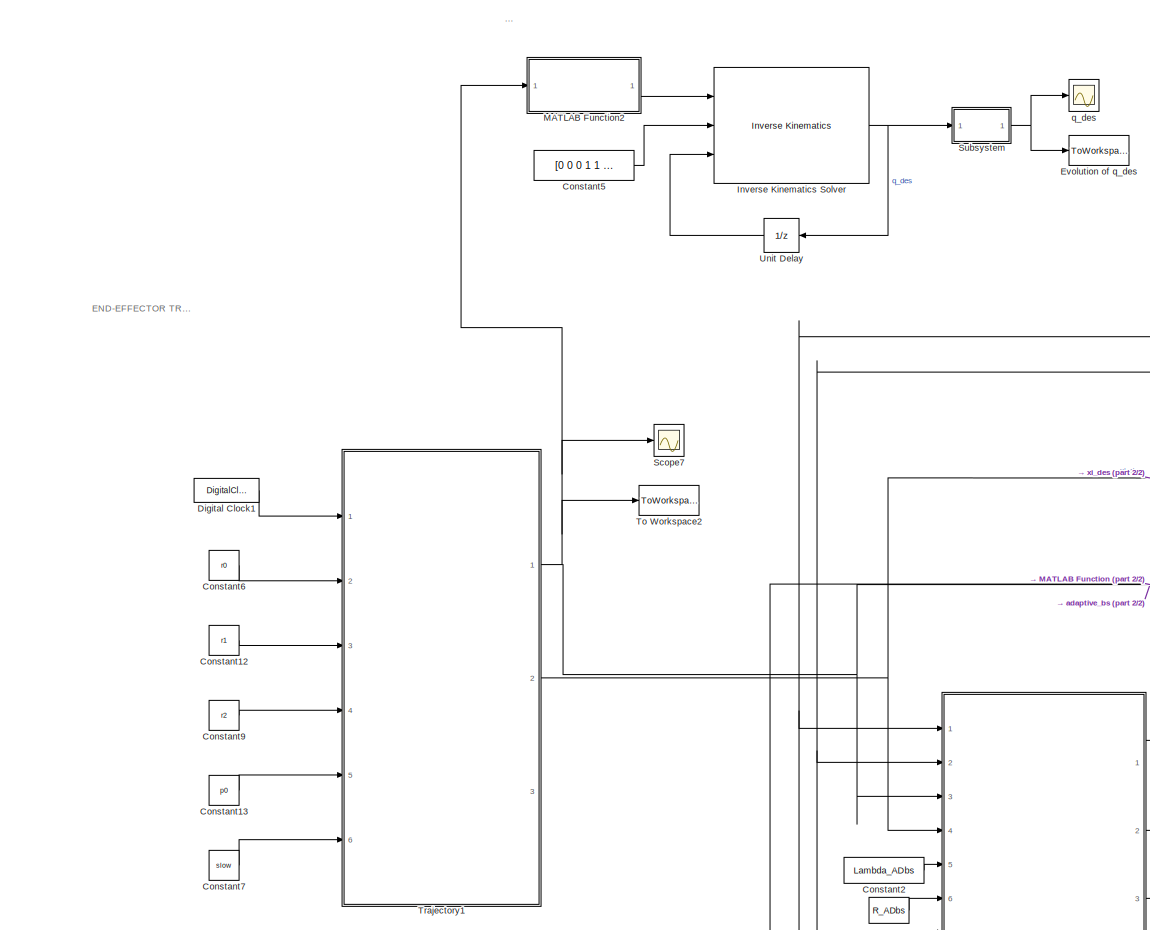
[diagram: root canvas - part 1/2, left side, full height]
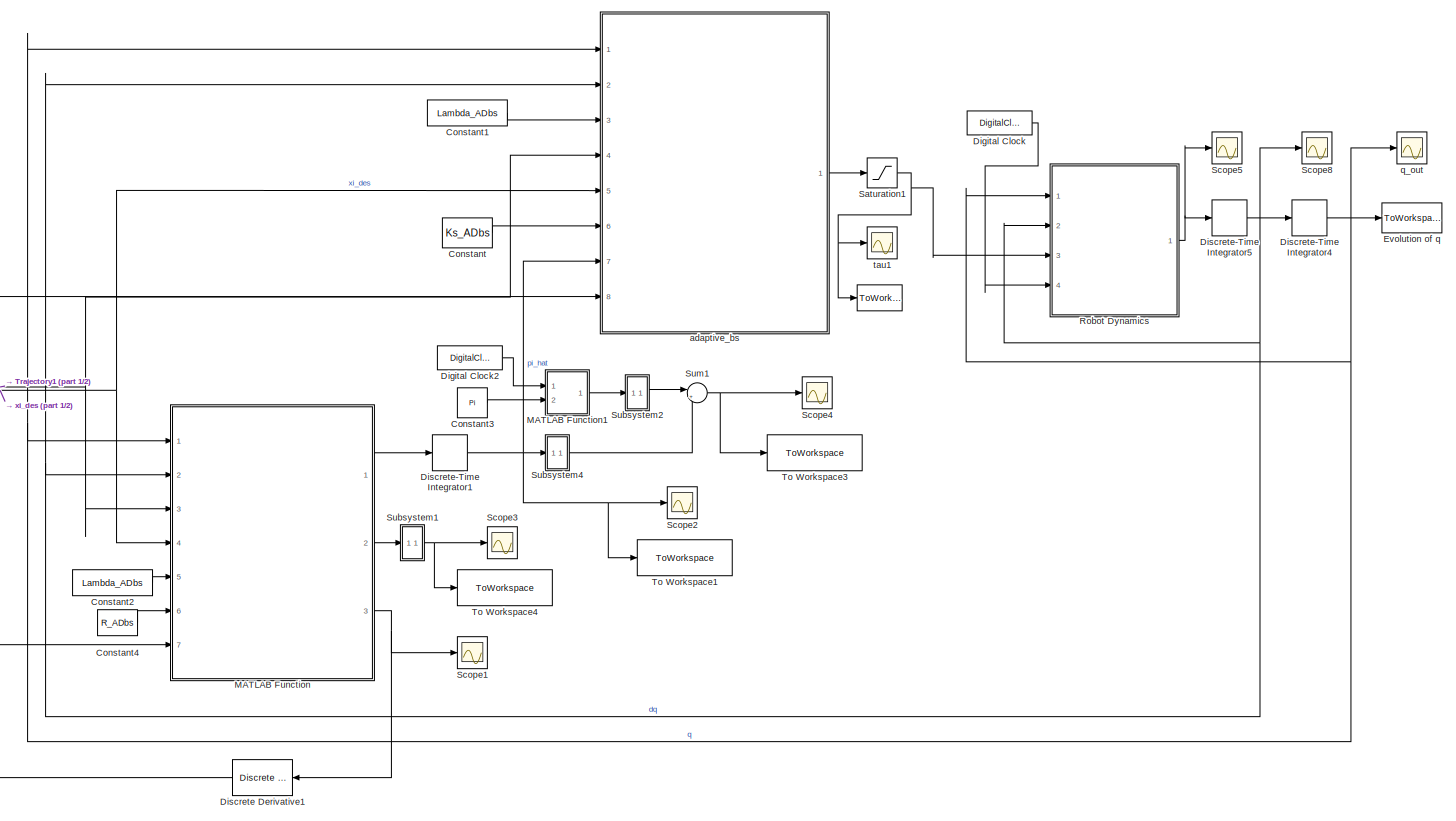
[diagram: root canvas - part 2/2, middle right region]
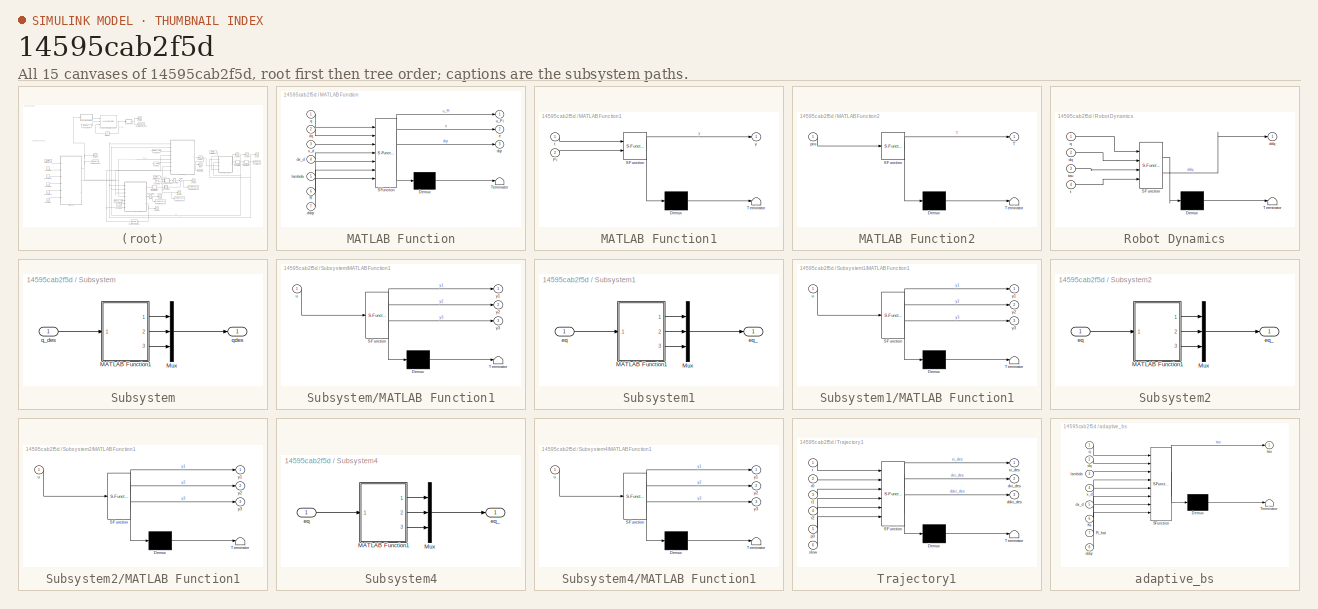
[diagram: thumbnail index - all 15 canvases of the model, root first then tree order]
MODEL slx_14595cab2f5d
KIND model
CONFIG AbsTol = auto
CONFIG EnableMultiTasking = off
CONFIG FixedStep = auto
CONFIG MaxStep = auto
CONFIG MinStep = auto
CONFIG RelTol = 1e-6
CONFIG SampleTimeConstraint = Unconstrained
CONFIG SolverName = VariableStepAuto
CONFIG StartTime = 0.0
CONFIG StopTime = 500
BLOCK [ToWorkspace]          
  FixptAsFi = on
  MaxDataPoints = inf
  Ports = [1]
  SampleTime = -1
  SaveFormat = Timeseries
  VariableName = tau_out
BLOCK [Constant] Constant
  Value = Ks_ADbs
BLOCK [Constant] Constant1
  Value = Lambda_ADbs
BLOCK [Constant] Constant12
  Value = r1
BLOCK [Constant] Constant13
  Value = p0
BLOCK [Constant] Constant2
  Value = Lambda_ADbs
BLOCK [Constant] Constant3
  Value = Pi
BLOCK [Constant] Constant4
  Value = R_ADbs
BLOCK [Constant] Constant5
  Value = [0 0 0 1 1 1]
BLOCK [Constant] Constant6
  Value = r0
BLOCK [Constant] Constant7
  Value = slow
BLOCK [Constant] Constant9
  Value = r2
BLOCK [DigitalClock] Digital Clock
  SampleTime = 0.01
BLOCK [DigitalClock] Digital Clock1
  SampleTime = 0.01
BLOCK [DigitalClock] Digital Clock2
  SampleTime = 0.01
BLOCK [Reference] Discrete Derivative1  REF=simulink/Discrete/Discrete Derivative
  NameLocation = top
  Ports = [1, 1]
  SourceBlock = simulink/Discrete/Discrete Derivative
  SourceProductBaseCode = SL
  SourceType = Discrete Derivative
BLOCK [DiscreteIntegrator] Discrete-Time Integrator1
  ICPrevOutput = DiscIntNeverNeededParam
  ICPrevScaledInput = DiscIntNeverNeededParam
  InitialCondition = Pi_hat0_ADbs
  InitialConditionSetting = Auto
  Ports = [1, 1]
  SampleTime = -1
BLOCK [DiscreteIntegrator] Discrete-Time Integrator4
  ICPrevOutput = DiscIntNeverNeededParam
  ICPrevScaledInput = DiscIntNeverNeededParam
  InitialCondition = q0
  InitialConditionSetting = Auto
  Ports = [1, 1]
  SampleTime = -1
BLOCK [DiscreteIntegrator] Discrete-Time Integrator5
  ICPrevOutput = DiscIntNeverNeededParam
  ICPrevScaledInput = DiscIntNeverNeededParam
  InitialCondition = dq0
  InitialConditionSetting = Auto
  Ports = [1, 1]
  SampleTime = -1
BLOCK [ToWorkspace] Evolution of q
  FixptAsFi = on
  MaxDataPoints = inf
  Ports = [1]
  SampleTime = -1
  SaveFormat = Timeseries
  VariableName = q_out
BLOCK [ToWorkspace] Evolution of q_des
  FixptAsFi = on
  MaxDataPoints = inf
  Ports = [1]
  SampleTime = -1
  SaveFormat = Timeseries
  VariableName = q_des_out
BLOCK [Reference] Inverse Kinematics Solver  REF=robotmaniplib/Inverse Kinematics
  Ports = [3, 1]
  SourceBlock = robotmaniplib/Inverse Kinematics
  SourceProductBaseCode = RO
  SourceType = Inverse Kinematics
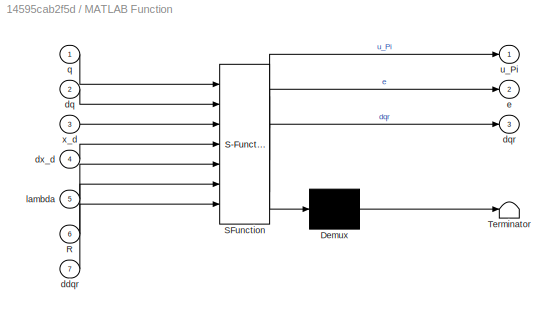
BLOCK [SubSystem] MATLAB Function
  ErrorFcn = Stateflow.Translate.translate
  PermitHierarchicalResolution = ExplicitOnly
  Ports = [7, 3]
  RequestExecContextInheritance = off
  SFBlockType = MATLAB Function
  TreatAsAtomicUnit = on
BLOCK [Demux] MATLAB Function/ Demux 
  Outputs = 1
  Ports = [1, 1]
BLOCK [S-Function] MATLAB Function/ SFunction 
  EnableBusSupport = on
  FunctionName = sf_sfun
  Parameters = param
  PortCounts = [7 4]
  Ports = [7, 4]
  SFcnIsStateOwnerBlock = off
  SFunctionDeploymentMode = off
  Tag = Stateflow S-Function 1
BLOCK [Terminator] MATLAB Function/ Terminator 
BLOCK [Inport] MATLAB Function/R
  Port = 6
BLOCK [Inport] MATLAB Function/ddqr
  Port = 7
BLOCK [Inport] MATLAB Function/dq
  Port = 2
BLOCK [Outport] MATLAB Function/dqr
  Port = 3
BLOCK [Inport] MATLAB Function/dx_d
  Port = 4
BLOCK [Outport] MATLAB Function/e
  Port = 2
BLOCK [Inport] MATLAB Function/lambda
  Port = 5
BLOCK [Inport] MATLAB Function/q
BLOCK [Outport] MATLAB Function/u_Pi
BLOCK [Inport] MATLAB Function/x_d
  Port = 3
BLOCK [SubSystem] MATLAB Function1
  ErrorFcn = Stateflow.Translate.translate
  PermitHierarchicalResolution = ExplicitOnly
  Ports = [2, 1]
  RequestExecContextInheritance = off
  SFBlockType = MATLAB Function
  TreatAsAtomicUnit = on
BLOCK [Demux] MATLAB Function1/ Demux 
  Outputs = 1
  Ports = [1, 1]
BLOCK [S-Function] MATLAB Function1/ SFunction 
  EnableBusSupport = on
  FunctionName = sf_sfun
  PortCounts = [2 2]
  Ports = [2, 2]
  SFcnIsStateOwnerBlock = off
  SFunctionDeploymentMode = off
  Tag = Stateflow S-Function 7
BLOCK [Terminator] MATLAB Function1/ Terminator 
BLOCK [Inport] MATLAB Function1/Pi
  Port = 2
BLOCK [Inport] MATLAB Function1/t
BLOCK [Outport] MATLAB Function1/y
BLOCK [SubSystem] MATLAB Function2
  ErrorFcn = Stateflow.Translate.translate
  PermitHierarchicalResolution = ExplicitOnly
  Ports = [1, 1]
  RequestExecContextInheritance = off
  SFBlockType = MATLAB Function
  TreatAsAtomicUnit = on
BLOCK [Demux] MATLAB Function2/ Demux 
  Outputs = 1
  Ports = [1, 1]
BLOCK [S-Function] MATLAB Function2/ SFunction 
  EnableBusSupport = on
  FunctionName = sf_sfun
  PortCounts = [1 2]
  Ports = [1, 2]
  SFcnIsStateOwnerBlock = off
  SFunctionDeploymentMode = off
  Tag = Stateflow S-Function 11
BLOCK [Terminator] MATLAB Function2/ Terminator 
BLOCK [Outport] MATLAB Function2/T
BLOCK [Inport] MATLAB Function2/pos
BLOCK [SubSystem] Robot Dynamics
  ErrorFcn = Stateflow.Translate.translate
  PermitHierarchicalResolution = ExplicitOnly
  Ports = [4, 1]
  RequestExecContextInheritance = off
  SFBlockType = MATLAB Function
  TreatAsAtomicUnit = on
BLOCK [Demux] Robot Dynamics/ Demux 
  Outputs = 1
  Ports = [1, 1]
BLOCK [S-Function] Robot Dynamics/ SFunction 
  EnableBusSupport = on
  FunctionName = sf_sfun
  Parameters = m1,m2,m3,param
  PortCounts = [4 2]
  Ports = [4, 2]
  SFcnIsStateOwnerBlock = off
  SFunctionDeploymentMode = off
  Tag = Stateflow S-Function 3
BLOCK [Terminator] Robot Dynamics/ Terminator 
BLOCK [Outport] Robot Dynamics/ddq
  VectorParamsAs1DForOutWhenUnconnected = off
BLOCK [Inport] Robot Dynamics/dq
  Port = 2
BLOCK [Inport] Robot Dynamics/q
BLOCK [Inport] Robot Dynamics/t
  Port = 4
BLOCK [Inport] Robot Dynamics/tau
  Port = 3
BLOCK [Saturate] Saturation1
  Commented = through
  LowerLimit = -100
  UpperLimit = 100
BLOCK [Scope] Scope1
  Commented = on
  Floating = off
  NumInputPorts = 1
  Ports = [1]
  ScopeSpecificationString = Simulink.scopes.TimeScopeBlockCfg('CurrentConfiguration', extmgr.ConfigurationSet(extmgr.Configuration('Core','General UI',true),extmgr.Configuration('Core','Source UI',true),extmgr.Configuration('Sources','WiredSimulink',true,'DataLoggingVariableName','ScopeData1'),extmgr.Configuration('Visuals','Time Domain',true,'SerializedDisplays',{struct('MinYLimReal','-46.64073','MaxYLimReal','46.27875','YL...<+1503ch>
BLOCK [Scope] Scope2
  Floating = off
  NumInputPorts = 1
  Ports = [1]
  ScopeSpecificationString = Simulink.scopes.TimeScopeBlockCfg('CurrentConfiguration', extmgr.ConfigurationSet(extmgr.Configuration('Core','General UI',true),extmgr.Configuration('Core','Source UI',true),extmgr.Configuration('Sources','WiredSimulink',true,'DataLoggingVariableName','ScopeData1'),extmgr.Configuration('Visuals','Time Domain',true,'SerializedDisplays',{struct('MinYLimReal','1.80111','MaxYLimReal','15.60321','YLab...<+1461ch>
BLOCK [Scope] Scope3
  Floating = off
  NumInputPorts = 1
  Ports = [1]
  ScopeSpecificationString = Simulink.scopes.TimeScopeBlockCfg('CurrentConfiguration', extmgr.ConfigurationSet(extmgr.Configuration('Core','General UI',true),extmgr.Configuration('Core','Source UI',true),extmgr.Configuration('Sources','WiredSimulink',true,'DataLoggingVariableName','ScopeData2'),extmgr.Configuration('Visuals','Time Domain',true,'SerializedDisplays',{struct('MinYLimReal','-0.06282','MaxYLimReal','0.21618','YLab...<+1473ch>
BLOCK [Scope] Scope4
  Floating = off
  NumInputPorts = 1
  Ports = [1]
  ScopeSpecificationString = Simulink.scopes.TimeScopeBlockCfg('CurrentConfiguration', extmgr.ConfigurationSet(extmgr.Configuration('Core','General UI',true),extmgr.Configuration('Core','Source UI',true),extmgr.Configuration('Sources','WiredSimulink',true,'DataLoggingVariableName','ScopeData1'),extmgr.Configuration('Visuals','Time Domain',true,'SerializedDisplays',{struct('MinYLimReal','-2.20886','MaxYLimReal','1.56159','YLab...<+1456ch>
BLOCK [Scope] Scope5
  Commented = on
  Floating = off
  NumInputPorts = 1
  Ports = [1]
  ScopeSpecificationString = Simulink.scopes.TimeScopeBlockCfg('CurrentConfiguration', extmgr.ConfigurationSet(extmgr.Configuration('Core','General UI',true),extmgr.Configuration('Core','Source UI',true),extmgr.Configuration('Sources','WiredSimulink',true,'DataLoggingVariableName','ScopeData1'),extmgr.Configuration('Visuals','Time Domain',true,'SerializedDisplays',{struct('MinYLimReal','-5596.78805','MaxYLimReal','5521.07963'...<+1567ch>
BLOCK [Scope] Scope7
  Floating = off
  NumInputPorts = 1
  Ports = [1]
  ScopeSpecificationString = Simulink.scopes.TimeScopeBlockCfg('CurrentConfiguration', extmgr.ConfigurationSet(extmgr.Configuration('Core','General UI',true),extmgr.Configuration('Core','Source UI',true),extmgr.Configuration('Sources','WiredSimulink',true,'DataLoggingVariableName','ScopeData1'),extmgr.Configuration('Visuals','Time Domain',true,'SerializedDisplays',{struct('MinYLimReal','0.09832','MaxYLimReal','0.1203','YLabel...<+1625ch>
BLOCK [Scope] Scope8
  Commented = on
  Floating = off
  NumInputPorts = 1
  Ports = [1]
  ScopeSpecificationString = Simulink.scopes.TimeScopeBlockCfg('CurrentConfiguration', extmgr.ConfigurationSet(extmgr.Configuration('Core','General UI',true),extmgr.Configuration('Core','Source UI',true),extmgr.Configuration('Sources','WiredSimulink',true,'DataLoggingVariableName','ScopeData2'),extmgr.Configuration('Visuals','Time Domain',true,'SerializedDisplays',{struct('MinYLimReal','-21.23035','MaxYLimReal','51.35107','YL...<+1475ch>
BLOCK [SubSystem] Subsystem
  Ports = [1, 1]
  RequestExecContextInheritance = off
BLOCK [SubSystem] Subsystem/MATLAB Function1
  ErrorFcn = Stateflow.Translate.translate
  PermitHierarchicalResolution = ExplicitOnly
  Ports = [1, 3]
  RequestExecContextInheritance = off
  SFBlockType = MATLAB Function
  TreatAsAtomicUnit = on
BLOCK [Demux] Subsystem/MATLAB Function1/ Demux 
  Outputs = 1
  Ports = [1, 1]
BLOCK [S-Function] Subsystem/MATLAB Function1/ SFunction 
  EnableBusSupport = on
  FunctionName = sf_sfun
  PortCounts = [1 4]
  Ports = [1, 4]
  SFcnIsStateOwnerBlock = off
  SFunctionDeploymentMode = off
  Tag = Stateflow S-Function 4
BLOCK [Terminator] Subsystem/MATLAB Function1/ Terminator 
BLOCK [Inport] Subsystem/MATLAB Function1/u
BLOCK [Outport] Subsystem/MATLAB Function1/y1
BLOCK [Outport] Subsystem/MATLAB Function1/y2
  Port = 2
BLOCK [Outport] Subsystem/MATLAB Function1/y3
  Port = 3
BLOCK [Mux] Subsystem/Mux
  DisplayOption = bar
  Inputs = 3
  Ports = [3, 1]
BLOCK [Inport] Subsystem/q_des
BLOCK [Outport] Subsystem/qdes
BLOCK [SubSystem] Subsystem1
  Ports = [1, 1]
  RequestExecContextInheritance = off
BLOCK [SubSystem] Subsystem1/MATLAB Function1
  ErrorFcn = Stateflow.Translate.translate
  PermitHierarchicalResolution = ExplicitOnly
  Ports = [1, 3]
  RequestExecContextInheritance = off
  SFBlockType = MATLAB Function
  TreatAsAtomicUnit = on
BLOCK [Demux] Subsystem1/MATLAB Function1/ Demux 
  Outputs = 1
  Ports = [1, 1]
BLOCK [S-Function] Subsystem1/MATLAB Function1/ SFunction 
  EnableBusSupport = on
  FunctionName = sf_sfun
  PortCounts = [1 4]
  Ports = [1, 4]
  SFcnIsStateOwnerBlock = off
  SFunctionDeploymentMode = off
  Tag = Stateflow S-Function 2
BLOCK [Terminator] Subsystem1/MATLAB Function1/ Terminator 
BLOCK [Inport] Subsystem1/MATLAB Function1/u
BLOCK [Outport] Subsystem1/MATLAB Function1/y1
BLOCK [Outport] Subsystem1/MATLAB Function1/y2
  Port = 2
BLOCK [Outport] Subsystem1/MATLAB Function1/y3
  Port = 3
BLOCK [Mux] Subsystem1/Mux
  DisplayOption = bar
  Inputs = 3
  Ports = [3, 1]
BLOCK [Inport] Subsystem1/eq
BLOCK [Outport] Subsystem1/eq_
BLOCK [SubSystem] Subsystem2
  Ports = [1, 1]
  RequestExecContextInheritance = off
BLOCK [SubSystem] Subsystem2/MATLAB Function1
  ErrorFcn = Stateflow.Translate.translate
  PermitHierarchicalResolution = ExplicitOnly
  Ports = [1, 3]
  RequestExecContextInheritance = off
  SFBlockType = MATLAB Function
  TreatAsAtomicUnit = on
BLOCK [Demux] Subsystem2/MATLAB Function1/ Demux 
  Outputs = 1
  Ports = [1, 1]
BLOCK [S-Function] Subsystem2/MATLAB Function1/ SFunction 
  EnableBusSupport = on
  FunctionName = sf_sfun
  PortCounts = [1 4]
  Ports = [1, 4]
  SFcnIsStateOwnerBlock = off
  SFunctionDeploymentMode = off
  Tag = Stateflow S-Function 8
BLOCK [Terminator] Subsystem2/MATLAB Function1/ Terminator 
BLOCK [Inport] Subsystem2/MATLAB Function1/u
BLOCK [Outport] Subsystem2/MATLAB Function1/y1
BLOCK [Outport] Subsystem2/MATLAB Function1/y2
  Port = 2
BLOCK [Outport] Subsystem2/MATLAB Function1/y3
  Port = 3
BLOCK [Mux] Subsystem2/Mux
  DisplayOption = bar
  Inputs = 3
  Ports = [3, 1]
BLOCK [Inport] Subsystem2/eq
BLOCK [Outport] Subsystem2/eq_
BLOCK [SubSystem] Subsystem4
  Ports = [1, 1]
  RequestExecContextInheritance = off
BLOCK [SubSystem] Subsystem4/MATLAB Function1
  ErrorFcn = Stateflow.Translate.translate
  PermitHierarchicalResolution = ExplicitOnly
  Ports = [1, 3]
  RequestExecContextInheritance = off
  SFBlockType = MATLAB Function
  TreatAsAtomicUnit = on
BLOCK [Demux] Subsystem4/MATLAB Function1/ Demux 
  Outputs = 1
  Ports = [1, 1]
BLOCK [S-Function] Subsystem4/MATLAB Function1/ SFunction 
  EnableBusSupport = on
  FunctionName = sf_sfun
  PortCounts = [1 4]
  Ports = [1, 4]
  SFcnIsStateOwnerBlock = off
  SFunctionDeploymentMode = off
  Tag = Stateflow S-Function 9
BLOCK [Terminator] Subsystem4/MATLAB Function1/ Terminator 
BLOCK [Inport] Subsystem4/MATLAB Function1/u
BLOCK [Outport] Subsystem4/MATLAB Function1/y1
BLOCK [Outport] Subsystem4/MATLAB Function1/y2
  Port = 2
BLOCK [Outport] Subsystem4/MATLAB Function1/y3
  Port = 3
BLOCK [Mux] Subsystem4/Mux
  DisplayOption = bar
  Inputs = 3
  Ports = [3, 1]
BLOCK [Inport] Subsystem4/eq
BLOCK [Outport] Subsystem4/eq_
BLOCK [Sum] Sum1
  Inputs = |+-
  Ports = [2, 1]
BLOCK [ToWorkspace] To Workspace1
  FixptAsFi = on
  MaxDataPoints = inf
  Ports = [1]
  SampleTime = -1
  SaveFormat = Timeseries
  VariableName = pi_hat_out
BLOCK [ToWorkspace] To Workspace2
  FixptAsFi = on
  MaxDataPoints = inf
  Ports = [1]
  SampleTime = -1
  SaveFormat = Timeseries
  VariableName = xi_des_out
BLOCK [ToWorkspace] To Workspace3
  FixptAsFi = on
  MaxDataPoints = inf
  Ports = [1]
  SampleTime = -1
  SaveFormat = Timeseries
  VariableName = pi_tilde_out
BLOCK [ToWorkspace] To Workspace4
  FixptAsFi = on
  MaxDataPoints = inf
  Ports = [1]
  SampleTime = -1
  SaveFormat = Timeseries
  VariableName = e_x
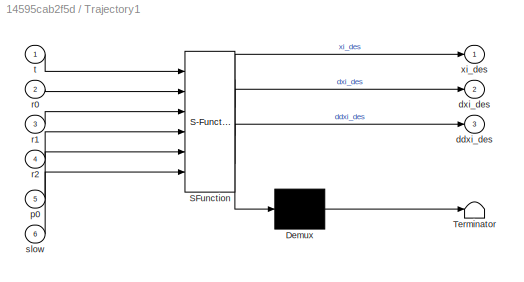
BLOCK [SubSystem] Trajectory1
  ErrorFcn = Stateflow.Translate.translate
  PermitHierarchicalResolution = ExplicitOnly
  Ports = [6, 3]
  RequestExecContextInheritance = off
  SFBlockType = MATLAB Function
  TreatAsAtomicUnit = on
BLOCK [Demux] Trajectory1/ Demux 
  Outputs = 1
  Ports = [1, 1]
BLOCK [S-Function] Trajectory1/ SFunction 
  EnableBusSupport = on
  FunctionName = sf_sfun
  PortCounts = [6 4]
  Ports = [6, 4]
  SFcnIsStateOwnerBlock = off
  SFunctionDeploymentMode = off
  Tag = Stateflow S-Function 6
BLOCK [Terminator] Trajectory1/ Terminator 
BLOCK [Outport] Trajectory1/ddxi_des
  Port = 3
  VectorParamsAs1DForOutWhenUnconnected = off
BLOCK [Outport] Trajectory1/dxi_des
  Port = 2
  VectorParamsAs1DForOutWhenUnconnected = off
BLOCK [Inport] Trajectory1/p0
  Port = 5
BLOCK [Inport] Trajectory1/r0
  Port = 2
BLOCK [Inport] Trajectory1/r1
  Port = 3
BLOCK [Inport] Trajectory1/r2
  Port = 4
BLOCK [Inport] Trajectory1/slow
  Port = 6
BLOCK [Inport] Trajectory1/t
BLOCK [Outport] Trajectory1/xi_des
  VectorParamsAs1DForOutWhenUnconnected = off
BLOCK [UnitDelay] Unit Delay
  HasFrameUpgradeWarning = on
  SampleTime = -1
BLOCK [SubSystem] adaptive_bs
  ErrorFcn = Stateflow.Translate.translate
  PermitHierarchicalResolution = ExplicitOnly
  Ports = [8, 1]
  RequestExecContextInheritance = off
  SFBlockType = MATLAB Function
  TreatAsAtomicUnit = on
BLOCK [Demux] adaptive_bs/ Demux 
  Outputs = 1
  Ports = [1, 1]
BLOCK [S-Function] adaptive_bs/ SFunction 
  EnableBusSupport = on
  FunctionName = sf_sfun
  Parameters = param
  PortCounts = [8 2]
  Ports = [8, 2]
  SFcnIsStateOwnerBlock = off
  SFunctionDeploymentMode = off
  Tag = Stateflow S-Function 5
BLOCK [Terminator] adaptive_bs/ Terminator 
BLOCK [Inport] adaptive_bs/Ks
  Port = 6
BLOCK [Inport] adaptive_bs/Pi_hat
  Port = 7
BLOCK [Inport] adaptive_bs/ddqr
  Port = 8
BLOCK [Inport] adaptive_bs/dq
  Port = 2
BLOCK [Inport] adaptive_bs/dx_d
  Port = 5
BLOCK [Inport] adaptive_bs/lambda
  Port = 3
BLOCK [Inport] adaptive_bs/q
BLOCK [Outport] adaptive_bs/tau
  VectorParamsAs1DForOutWhenUnconnected = off
BLOCK [Inport] adaptive_bs/x_d
  Port = 4
BLOCK [Scope] q_des
  Floating = off
  NumInputPorts = 1
  Ports = [1]
  ScopeSpecificationString = Simulink.scopes.TimeScopeBlockCfg('CurrentConfiguration', extmgr.ConfigurationSet(extmgr.Configuration('Core','General UI',true),extmgr.Configuration('Core','Source UI',true),extmgr.Configuration('Sources','WiredSimulink',true,'DataLoggingVariableName','ScopeData4'),extmgr.Configuration('Visuals','Time Domain',true,'SerializedDisplays',{struct('MinYLimReal','-3.12859','MaxYLimReal','1.77155','YLab...<+1604ch>
BLOCK [Scope] q_out
  Floating = off
  NumInputPorts = 1
  Ports = [1]
  ScopeSpecificationString = Simulink.scopes.TimeScopeBlockCfg('CurrentConfiguration', extmgr.ConfigurationSet(extmgr.Configuration('Core','General UI',true),extmgr.Configuration('Core','Source UI',true),extmgr.Configuration('Sources','WiredSimulink',true,'DataLoggingVariableName','ScopeData3'),extmgr.Configuration('Visuals','Time Domain',true,'SerializedDisplays',{struct('MinYLimReal','-65765194749510424965561116637970365695...<+3678ch>
BLOCK [Scope] tau1
  Floating = off
  NumInputPorts = 1
  Ports = [1]
  ScopeSpecificationString = Simulink.scopes.TimeScopeBlockCfg('CurrentConfiguration', extmgr.ConfigurationSet(extmgr.Configuration('Core','General UI',true),extmgr.Configuration('Core','Source UI',true),extmgr.Configuration('Sources','WiredSimulink',true,'DataLoggingVariableName','ScopeData2'),extmgr.Configuration('Visuals','Time Domain',true,'SerializedDisplays',{struct('MinYLimReal','-252.44393','MaxYLimReal','250.56812','...<+1492ch>
ANNOTATION (root): INVERSE KINEMATICS
ANNOTATION (root): END-EFFECTOR TRAJECTORY
LINE Constant12:1 -> Trajectory1:3
LINE Constant13:1 -> Trajectory1:5
LINE Constant1:1 -> adaptive_bs:3
LINE Constant2:1 -> MATLAB Function:5
LINE Constant3:1 -> MATLAB Function1:2
LINE Constant4:1 -> MATLAB Function:6
LINE Constant5:1 -> Inverse Kinematics Solver:2
LINE Constant6:1 -> Trajectory1:2
LINE Constant7:1 -> Trajectory1:6
LINE Constant9:1 -> Trajectory1:4
LINE Constant:1 -> adaptive_bs:6
LINE Digital Clock1:1 -> Trajectory1:1
LINE Digital Clock2:1 -> MATLAB Function1:1
LINE Digital Clock:1 -> Robot Dynamics:4
NET Discrete Derivative1:1 -> MATLAB Function:7, adaptive_bs:8
NET Discrete-Time Integrator1:1 -> Scope2:1, Subsystem4:1, To Workspace1:1, adaptive_bs:7
NET Discrete-Time Integrator4:1 -> Evolution of q:1, MATLAB Function:1, Robot Dynamics:1, adaptive_bs:1, q_out:1
NET Discrete-Time Integrator5:1 -> Discrete-Time Integrator4:1, MATLAB Function:2, Robot Dynamics:2, Scope8:1, adaptive_bs:2
NET Inverse Kinematics Solver:1 -> Subsystem:1, Unit Delay:1
LINE MATLAB Function1:1 -> Subsystem2:1
LINE MATLAB Function2:1 -> Inverse Kinematics Solver:1
LINE MATLAB Function:1 -> Discrete-Time Integrator1:1
LINE MATLAB Function:2 -> Subsystem1:1
NET MATLAB Function:3 -> Discrete Derivative1:1, Scope1:1
NET Robot Dynamics:1 -> Discrete-Time Integrator5:1, Scope5:1
NET Saturation1:1 ->          :1, Robot Dynamics:3, tau1:1
LINE Subsystem/MATLAB Function1:1 -> Subsystem/Mux:1
LINE Subsystem/MATLAB Function1:2 -> Subsystem/Mux:2
LINE Subsystem/MATLAB Function1:3 -> Subsystem/Mux:3
LINE Subsystem/Mux:1 -> Subsystem/qdes:1
LINE Subsystem/q_des:1 -> Subsystem/MATLAB Function1:1
LINE Subsystem1/MATLAB Function1:1 -> Subsystem1/Mux:1
LINE Subsystem1/MATLAB Function1:2 -> Subsystem1/Mux:2
LINE Subsystem1/MATLAB Function1:3 -> Subsystem1/Mux:3
LINE Subsystem1/Mux:1 -> Subsystem1/eq_:1
LINE Subsystem1/eq:1 -> Subsystem1/MATLAB Function1:1
NET Subsystem1:1 -> Scope3:1, To Workspace4:1
LINE Subsystem2/MATLAB Function1:1 -> Subsystem2/Mux:1
LINE Subsystem2/MATLAB Function1:2 -> Subsystem2/Mux:2
LINE Subsystem2/MATLAB Function1:3 -> Subsystem2/Mux:3
LINE Subsystem2/Mux:1 -> Subsystem2/eq_:1
LINE Subsystem2/eq:1 -> Subsystem2/MATLAB Function1:1
LINE Subsystem2:1 -> Sum1:1
LINE Subsystem4/MATLAB Function1:1 -> Subsystem4/Mux:1
LINE Subsystem4/MATLAB Function1:2 -> Subsystem4/Mux:2
LINE Subsystem4/MATLAB Function1:3 -> Subsystem4/Mux:3
LINE Subsystem4/Mux:1 -> Subsystem4/eq_:1
LINE Subsystem4/eq:1 -> Subsystem4/MATLAB Function1:1
LINE Subsystem4:1 -> Sum1:2
NET Subsystem:1 -> Evolution of q_des:1, q_des:1
NET Sum1:1 -> Scope4:1, To Workspace3:1
NET Trajectory1:1 -> MATLAB Function2:1, MATLAB Function:3, Scope7:1, To Workspace2:1, adaptive_bs:4
NET Trajectory1:2 -> MATLAB Function:4, adaptive_bs:5
LINE Unit Delay:1 -> Inverse Kinematics Solver:3
LINE adaptive_bs:1 -> Saturation1:1
note: NET lines group one-source signal fan-out (src -> all destinations, sorted); 1:1 wires keep LINE
CHART MATLAB Function1 states=1 transitions=1
  STATE_LABEL 'eML_blk_kernel()'
  STATE_LABEL 'SCRIPT:\nfunction y = fcn(t,Pi)\n\n    if t > 200\n        Pi(2) = Pi(2) + 1;\n    end\n\n    y = Pi;\n\nend\n'
CHART Subsystem2/MATLAB Function1 states=1 transitions=1
  STATE_LABEL 'eML_blk_kernel()'
  STATE_LABEL 'SCRIPT:\nfunction [y1,y2,y3] = fcn(u)\n\ny1 = squeeze(u(1));\ny2 = squeeze(u(2));\ny3 = squeeze(u(3));'
CHART Subsystem4/MATLAB Function1 states=1 transitions=1
  STATE_LABEL 'eML_blk_kernel()'
  STATE_LABEL 'SCRIPT:\nfunction [y1,y2,y3] = fcn(u)\n\ny1 = squeeze(u(1));\ny2 = squeeze(u(2));\ny3 = squeeze(u(3));'
CHART MATLAB Function2 states=1 transitions=1
  STATE_LABEL 'eML_blk_kernel()'
  STATE_LABEL 'SCRIPT:\nfunction T = homogeneus_transf(pos)\n    \n    T=eye(4);\n    \n    T = [  eye(3),     [pos(1);pos(2);pos(3) ];\n         0 0 0              1           ]; \n\nend'
CHART MATLAB Function states=1 transitions=1
  STATE_LABEL 'eML_blk_kernel()'
  STATE_LABEL "SCRIPT:\nfunction [u_Pi,e,dqr] = updating(q, dq, x_d, dx_d, param, lambda, R,ddqr)\n\n    g = 9.81;\n  \n    RR = FK_3r(param,q);\n    x = RR(1:3,4);\n    \n    J = J_3r(param,q);\n    J = J(1:3,:);\n\n    e  = x_d - x;\n    dqr = pinv(J) * (dx_d + lambda * e);\n\n    s = dqr - dq;\n    \n    Y = Y_fun_SL(g,param,ddqr,dqr,dq,q);\n    \n    u_Pi = pinv(R) * Y' * s;\n    \nend"
CHART Subsystem1/MATLAB Function1 states=1 transitions=1
  STATE_LABEL 'eML_blk_kernel()'
  STATE_LABEL 'SCRIPT:\nfunction [y1,y2,y3] = fcn(u)\n\ny1 = squeeze(u(1));\ny2 = squeeze(u(2));\ny3 = squeeze(u(3));'
CHART Robot Dynamics states=1 transitions=1
  STATE_LABEL 'eML_blk_kernel()'
  STATE_LABEL 'SCRIPT:\nfunction ddq = inverse_dynamics(q, dq, tau, t, m1, m2, m3, param)\n    \n    g = 9.81;\n\n    if t > 200\n        m2 = m2 + 1;\n    end\n\n    % Get dynamic matrices\n    M = B_3r(param,m1,m2,m3,q);\n    C = C_3r(param,m1,m2,m3,q,dq);\n    G = G_3r(g,param,m1,m2,m3,q);\n    \n    ddq = pinv(M)*(tau - C*dq - G);\n\nend\n\n\n\n'
CHART Subsystem/MATLAB Function1 states=1 transitions=1
  STATE_LABEL 'eML_blk_kernel()'
  STATE_LABEL 'SCRIPT:\nfunction [y1,y2,y3] = fcn(u)\n\ny1 = squeeze(u(1));\ny2 = squeeze(u(2));\ny3 = squeeze(u(3));'
CHART adaptive_bs states=1 transitions=1
  STATE_LABEL 'eML_blk_kernel()'
  STATE_LABEL 'SCRIPT:\nfunction tau = adaptive_bs(q, dq, lambda, x_d, dx_d, Ks, Pi_hat, param,ddqr)\n    \n    g = 9.81;\n  \n    RR = FK_3r(param,q);\n    x = RR(1:3,4);\n    \n    J = J_3r(param,q);\n    J = J(1:3,:);\n    \n    e  = x_d - x;\n    dqr = pinv(J) * (dx_d + lambda * e);                                        \n    \n    s = dqr - dq;\n    \n    Y = Y_fun_SL(g,param,ddqr,dqr,dq,q);\n\n    % Control law\n    tau = Y...<+30ch>'
CHART Trajectory1 states=1 transitions=1
  STATE_LABEL 'eML_blk_kernel()'
  STATE_LABEL 'SCRIPT:\nfunction [xi_des, dxi_des, ddxi_des] = trajectory(t,r0,r1,r2,p0,slow)\n\n    k=slow;\n    \n    xi_des =   [r0*sin(t/(2*k))       ; r1*sin(t/k)     ; r2*cos(t/k)     ] + p0;\n    dxi_des =  [r0/2/k*cos(t/(2*k))   ; r1/k*cos(t/k)   ; -r2/k*sin(t/k)  ];\n    ddxi_des = [-r0/4/k/k*sin(t/(2*k)); -r1/k/k*sin(t/k); -r2/k/k*cos(t/k)];\n\nend\n'
CHART  states=0 transitions=0
CHART  states=0 transitions=0
CHART  states=0 transitions=0
CHART  states=0 transitions=0
CHART  states=0 transitions=0
CHART  states=0 transitions=0
CHART  states=0 transitions=0
CHART  states=0 transitions=0
CHART  states=0 transitions=0
CHART  states=0 transitions=0
